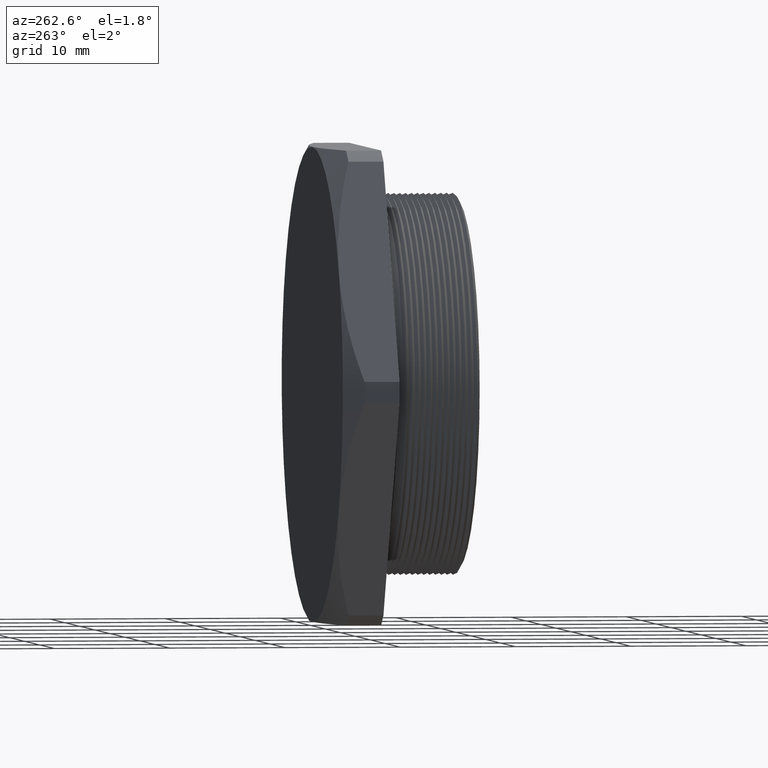
[diagram: clean part render]
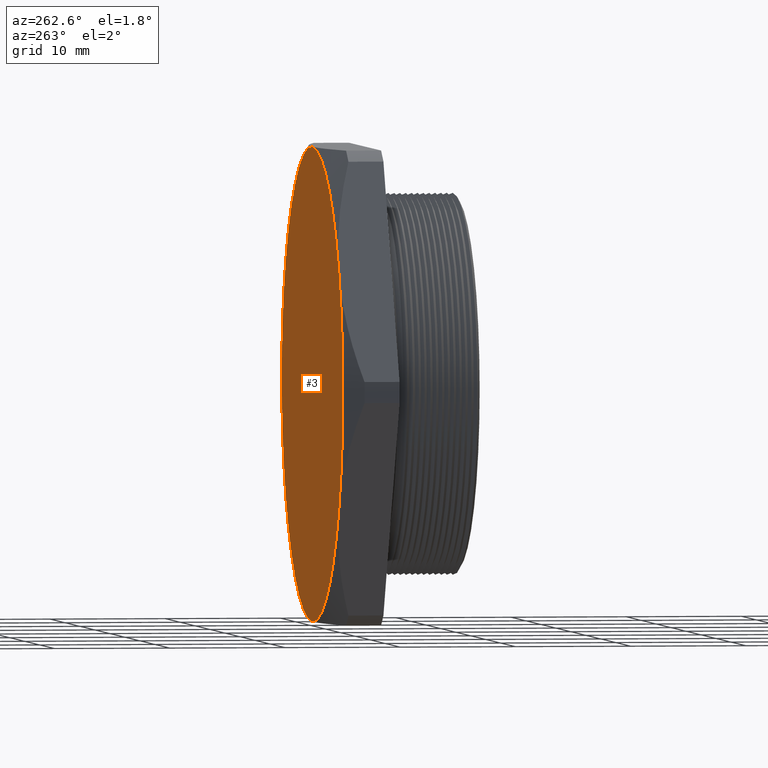
[diagram: same view with one face highlighted and labeled with its STEP entity id]
A machine part, auxiliary view. The second image highlights one B-rep face of the part: STEP entity #3.
In plain terms, the highlighted planar face has unit normal (0, -1, 0).
Its self-contained STEP definition (entity closure, byte-faithful):
#3 = ADVANCED_FACE ( 'NONE', ( #751 ), #750, .F. ) ;
#6 = EDGE_CURVE ( 'NONE', #630, #563, #742, .T. ) ;
#211 = EDGE_CURVE ( 'NONE', #694, #630, #1058, .T. ) ;
#224 = EDGE_CURVE ( 'NONE', #498, #683, #1153, .T. ) ;
#227 = EDGE_CURVE ( 'NONE', #683, #694, #1149, .T. ) ;
#253 = EDGE_CURVE ( 'NONE', #563, #655, #1184, .T. ) ;
#266 = EDGE_CURVE ( 'NONE', #655, #498, #1168, .T. ) ;
#272 = ORIENTED_EDGE ( 'NONE', *, *, #6, .T. ) ;
#273 = ORIENTED_EDGE ( 'NONE', *, *, #253, .T. ) ;
#275 = EDGE_LOOP ( 'NONE', ( #276, #272, #273, #752, #753, #754 ) ) ;
#276 = ORIENTED_EDGE ( 'NONE', *, *, #211, .T. ) ;
#498 = VERTEX_POINT ( 'NONE', #1605 ) ;
#563 = VERTEX_POINT ( 'NONE', #1736 ) ;
#630 = VERTEX_POINT ( 'NONE', #1845 ) ;
#655 = VERTEX_POINT ( 'NONE', #1934 ) ;
#683 = VERTEX_POINT ( 'NONE', #1995 ) ;
#694 = VERTEX_POINT ( 'NONE', #2029 ) ;
#734 = DIRECTION ( 'NONE',  ( 0.0000000000000000000, 0.0000000000000000000, 1.000000000000000000 ) ) ;
#735 = DIRECTION ( 'NONE',  ( 0.0000000000000000000, 1.000000000000000000, 0.0000000000000000000 ) ) ;
#736 = CARTESIAN_POINT ( 'NONE',  ( 0.0000000000000000000, 0.4899999999999999900, 0.0000000000000000000 ) ) ;
#737 = AXIS2_PLACEMENT_3D ( 'NONE', #736, #735, #734 ) ;
#742 = CIRCLE ( 'NONE', #737, 0.8050000000000000500 ) ;
#745 = DIRECTION ( 'NONE',  ( 0.0000000000000000000, 0.0000000000000000000, -1.000000000000000000 ) ) ;
#746 = DIRECTION ( 'NONE',  ( 0.0000000000000000000, -1.000000000000000000, 0.0000000000000000000 ) ) ;
#748 = CARTESIAN_POINT ( 'NONE',  ( -0.9096499999999999600, 0.4899999999999999900, 0.0000000000000000000 ) ) ;
#749 = AXIS2_PLACEMENT_3D ( 'NONE', #748, #746, #745 ) ;
#750 = PLANE ( 'NONE',  #749 ) ;
#751 = FACE_OUTER_BOUND ( 'NONE', #275, .T. ) ;
#752 = ORIENTED_EDGE ( 'NONE', *, *, #266, .T. ) ;
#753 = ORIENTED_EDGE ( 'NONE', *, *, #224, .T. ) ;
#754 = ORIENTED_EDGE ( 'NONE', *, *, #227, .T. ) ;
#1055 = DIRECTION ( 'NONE',  ( 0.0000000000000000000, 1.000000000000000000, 0.0000000000000000000 ) ) ;
#1056 = CARTESIAN_POINT ( 'NONE',  ( 0.0000000000000000000, 0.4899999999999999900, 0.0000000000000000000 ) ) ;
#1057 = AXIS2_PLACEMENT_3D ( 'NONE', #1056, #1055, #1119 ) ;
#1058 = CIRCLE ( 'NONE', #1057, 0.8050000000000000500 ) ;
#1092 = CARTESIAN_POINT ( 'NONE',  ( 0.0000000000000000000, 0.4899999999999999900, 0.0000000000000000000 ) ) ;
#1119 = DIRECTION ( 'NONE',  ( 0.0000000000000000000, 0.0000000000000000000, 1.000000000000000000 ) ) ;
#1145 = DIRECTION ( 'NONE',  ( 0.0000000000000000000, 0.0000000000000000000, 1.000000000000000000 ) ) ;
#1146 = DIRECTION ( 'NONE',  ( 0.0000000000000000000, 1.000000000000000000, 0.0000000000000000000 ) ) ;
#1147 = CARTESIAN_POINT ( 'NONE',  ( 0.0000000000000000000, 0.4899999999999999900, 0.0000000000000000000 ) ) ;
#1148 = AXIS2_PLACEMENT_3D ( 'NONE', #1147, #1146, #1145 ) ;
#1149 = CIRCLE ( 'NONE', #1148, 0.8050000000000000500 ) ;
#1150 = DIRECTION ( 'NONE',  ( 0.0000000000000000000, 0.0000000000000000000, 1.000000000000000000 ) ) ;
#1151 = DIRECTION ( 'NONE',  ( 0.0000000000000000000, 1.000000000000000000, 0.0000000000000000000 ) ) ;
#1152 = AXIS2_PLACEMENT_3D ( 'NONE', #1092, #1151, #1150 ) ;
#1153 = CIRCLE ( 'NONE', #1152, 0.8050000000000000500 ) ;
#1164 = DIRECTION ( 'NONE',  ( 0.0000000000000000000, 0.0000000000000000000, 1.000000000000000000 ) ) ;
#1165 = DIRECTION ( 'NONE',  ( 0.0000000000000000000, 1.000000000000000000, 0.0000000000000000000 ) ) ;
#1166 = CARTESIAN_POINT ( 'NONE',  ( 0.0000000000000000000, 0.4899999999999999900, 0.0000000000000000000 ) ) ;
#1167 = AXIS2_PLACEMENT_3D ( 'NONE', #1166, #1165, #1164 ) ;
#1168 = CIRCLE ( 'NONE', #1167, 0.8050000000000000500 ) ;
#1177 = DIRECTION ( 'NONE',  ( 0.0000000000000000000, 0.0000000000000000000, 1.000000000000000000 ) ) ;
#1178 = DIRECTION ( 'NONE',  ( 0.0000000000000000000, 1.000000000000000000, 0.0000000000000000000 ) ) ;
#1179 = CARTESIAN_POINT ( 'NONE',  ( 0.0000000000000000000, 0.4899999999999999900, 0.0000000000000000000 ) ) ;
#1180 = AXIS2_PLACEMENT_3D ( 'NONE', #1179, #1178, #1177 ) ;
#1184 = CIRCLE ( 'NONE', #1180, 0.8050000000000000500 ) ;
#1605 = CARTESIAN_POINT ( 'NONE',  ( 1.182924880895401300E-016, 0.4899999999999999900, 0.8050000000000000500 ) ) ;
#1736 = CARTESIAN_POINT ( 'NONE',  ( -0.6971504500464731400, 0.4899999999999999900, -0.4024999999999996900 ) ) ;
#1845 = CARTESIAN_POINT ( 'NONE',  ( 0.0000000000000000000, 0.4899999999999999900, -0.8050000000000000500 ) ) ;
#1934 = CARTESIAN_POINT ( 'NONE',  ( -0.6971504500464731400, 0.4899999999999999900, 0.4025000000000003000 ) ) ;
#1995 = CARTESIAN_POINT ( 'NONE',  ( 0.6971504500464731400, 0.4899999999999999900, 0.4024999999999998000 ) ) ;
#2029 = CARTESIAN_POINT ( 'NONE',  ( 0.6971504500464730200, 0.4899999999999999900, -0.4024999999999998600 ) ) ;